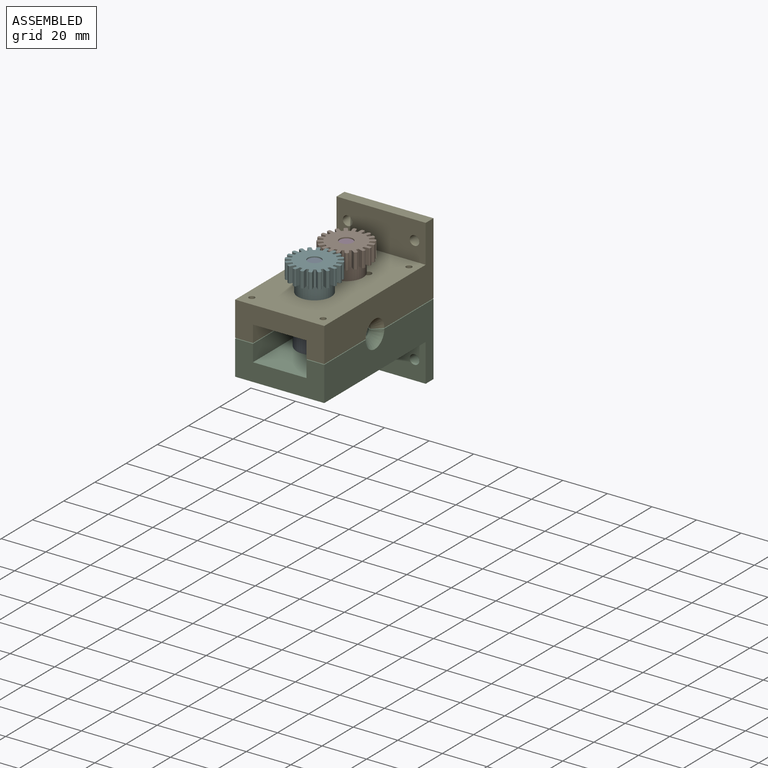
[diagram: assembled view]
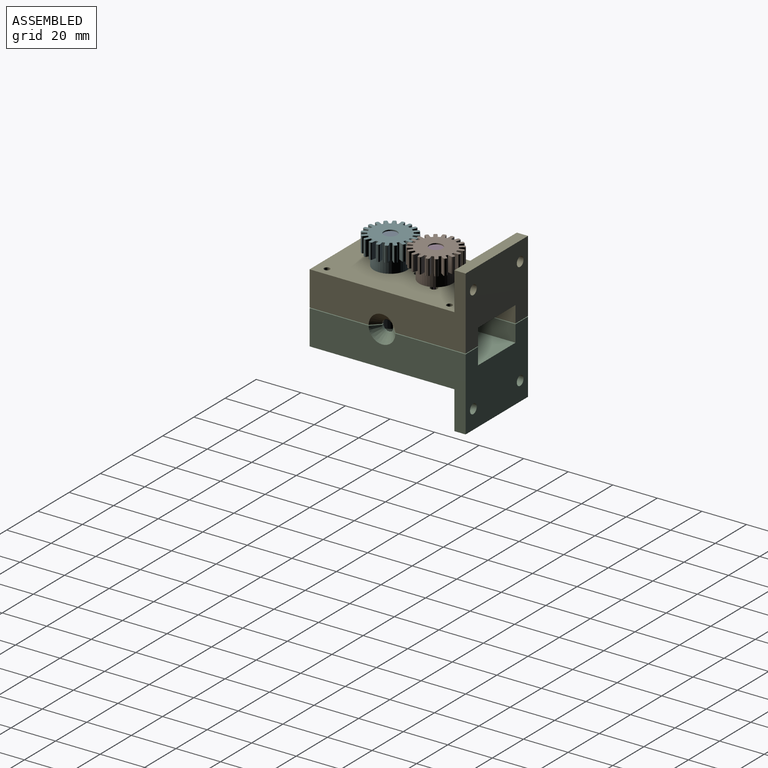
[diagram: assembled view, second angle]
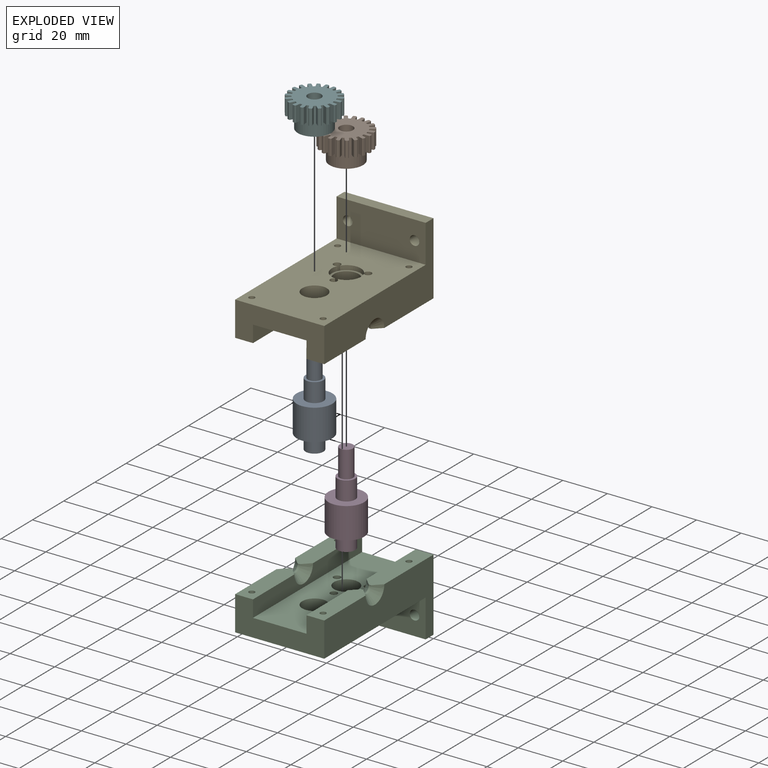
[diagram: exploded view]
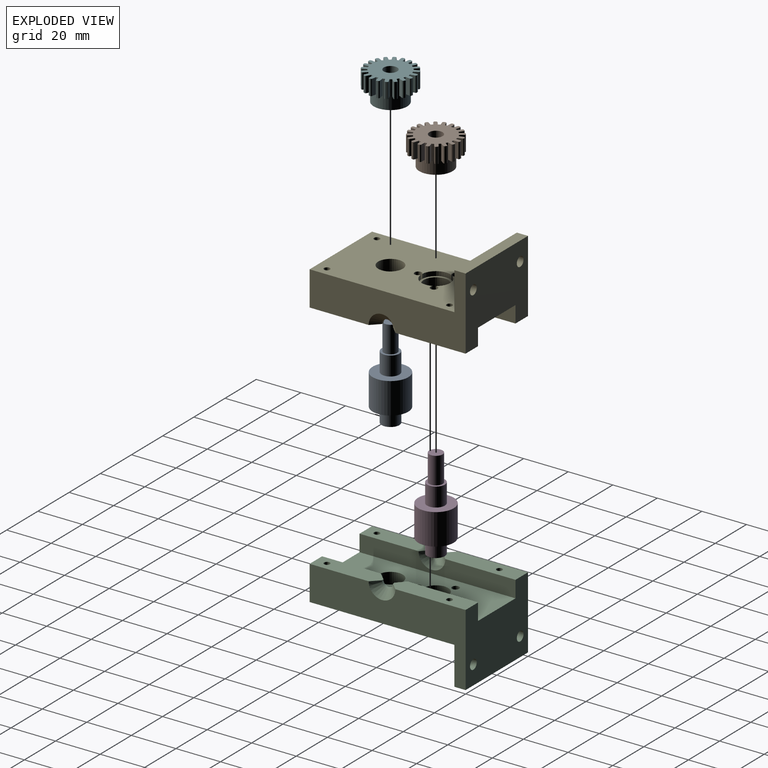
[diagram: exploded view, second angle]
ASSEMBLY  parts=6 mates=8
PART A: 11 faces, bbox 41x16x16 mm
  f0: cylinder r=4mm len=8mm, axis (-1,0,0), area 163.4mm2, adj f1,f8
  f1: plane 16x16mm, normal (-1,0,0), area 150.8mm2, adj f0,f7
  f2: plane 6x6mm, normal (1,0,0), area 28.3mm2, adj f3
  f3: cylinder r=3mm len=12mm, axis (-1,0,0), area 226.2mm2, adj f2,f4
  f4: plane 8x8mm, normal (1,0,0), area 22mm2, adj f3,f5
  f5: cylinder r=4mm len=8.5mm, axis (-1,0,0), area 213.6mm2, adj f4,f6
  f6: plane 16x16mm, normal (1,0,0), area 150.8mm2, adj f5,f7
  f7: cylinder r=8mm len=16mm, axis (-1,0,0), area 703.7mm2, adj f1,f6
  f8: plane 8x8mm, normal (-1,0,0), area 36.4mm2, adj f0,f10
  f9: plane 4.2x4.2mm, normal (-1,0,0), area 13.9mm2, adj f10
  f10: cylinder r=2.1mm len=10mm, axis (-1,0,0), area 131.9mm2, adj f8,f9
PART B: 125 faces, bbox 13x21.9x21.9 mm
  f0: cylinder r=11mm len=7mm, axis (-1,0,0), area 6.5mm2, adj f1,f8,f114,f117
  f1: plane 7x0.43mm, normal (0,-0.32,0.95), area 3.2mm2, adj f0,f3,f114,f117
  f2: plane 7x0.37mm, normal (0,0.81,0.58), area 3.2mm2, adj f5,f114,f117,f118
  f3: plane 7x1.95mm, normal (0,-0.88,0.47), area 15.5mm2, adj f1,f4,f114,f117
  f4: cylinder r=8.5mm len=7mm, axis (-1,0,0), area 7mm2, adj f3,f5,f114,f117
  f5: plane 7x2.19mm, normal (0,0.99,-0.13), area 15.5mm2, adj f2,f4,f114,f117
  f6: cylinder r=11mm len=7mm, axis (-1,0,0), area 6.5mm2, adj f7,f14,f114,f117
  f7: plane 7x0.45mm, normal (0,-0.01,1), area 3.2mm2, adj f6,f9,f114,f117
  f8: plane 7x0.43mm, normal (0,0.95,0.3), area 3.2mm2, adj f0,f11,f114,f117
  f9: plane 7x1.6mm, normal (0,-0.69,0.72), area 15.5mm2, adj f7,f10,f114,f117
  f10: cylinder r=8.5mm len=7mm, axis (-1,0,0), area 7mm2, adj f9,f11,f114,f117
  f11: plane 7x1.99mm, normal (0,0.9,-0.43), area 15.5mm2, adj f8,f10,f114,f117
  f12: cylinder r=11mm len=7mm, axis (-1,0,0), area 6.5mm2, adj f13,f20,f114,f117
  f13: plane 7x0.43mm, normal (0,0.3,0.95), area 3.2mm2, adj f12,f15,f114,f117
  f14: plane 7x0.45mm, normal (0,1,-0.01), area 3.2mm2, adj f6,f17,f114,f117
  f15: plane 7x1.99mm, normal (0,-0.43,0.9), area 15.5mm2, adj f13,f16,f114,f117
  f16: cylinder r=8.5mm len=7mm, axis (-1,0,0), area 7mm2, adj f15,f17,f114,f117
  f17: plane 7x1.6mm, normal (0,0.72,-0.69), area 15.5mm2, adj f14,f16,f114,f117
  f18: cylinder r=11mm len=7mm, axis (-1,0,0), area 6.5mm2, adj f19,f26,f114,f117
  f19: plane 7x0.37mm, normal (0,0.58,0.81), area 3.2mm2, adj f18,f21,f114,f117
  f20: plane 7x0.43mm, normal (0,0.95,-0.32), area 3.2mm2, adj f12,f23,f114,f117
  f21: plane 7x2.19mm, normal (0,-0.13,0.99), area 15.5mm2, adj f19,f22,f114,f117
  f22: cylinder r=8.5mm len=7mm, axis (-1,0,0), area 7mm2, adj f21,f23,f114,f117
  f23: plane 7x1.95mm, normal (0,0.47,-0.88), area 15.5mm2, adj f20,f22,f114,f117
  f24: cylinder r=11mm len=7mm, axis (-1,0,0), area 6.5mm2, adj f25,f32,f114,f117
  f25: plane 7x0.36mm, normal (0,0.8,0.6), area 3.2mm2, adj f24,f27,f114,f117
  f26: plane 7x0.36mm, normal (0,0.8,-0.6), area 3.2mm2, adj f18,f29,f114,f117
  f27: plane 7x2.17mm, normal (0,0.18,0.98), area 15.5mm2, adj f25,f28,f114,f117
  f28: cylinder r=8.5mm len=7mm, axis (-1,0,0), area 7mm2, adj f27,f29,f114,f117
  f29: plane 7x2.17mm, normal (0,0.18,-0.98), area 15.5mm2, adj f26,f28,f114,f117
  f30: cylinder r=11mm len=7mm, axis (-1,0,0), area 6.5mm2, adj f31,f38,f114,f117
  f31: plane 7x0.43mm, normal (0,0.95,0.32), area 3.2mm2, adj f30,f33,f114,f117
  f32: plane 7x0.37mm, normal (0,0.58,-0.81), area 3.2mm2, adj f24,f35,f114,f117
  f33: plane 7x1.95mm, normal (0,0.47,0.88), area 15.5mm2, adj f31,f34,f114,f117
  f34: cylinder r=8.5mm len=7mm, axis (-1,0,0), area 7mm2, adj f33,f35,f114,f117
  f35: plane 7x2.19mm, normal (0,-0.13,-0.99), area 15.5mm2, adj f32,f34,f114,f117
  f36: cylinder r=11mm len=7mm, axis (-1,0,0), area 6.5mm2, adj f37,f44,f114,f117
  f37: plane 7x0.45mm, normal (0,1,0.01), area 3.2mm2, adj f36,f39,f114,f117
  f38: plane 7x0.43mm, normal (0,0.3,-0.95), area 3.2mm2, adj f30,f41,f114,f117
  f39: plane 7x1.6mm, normal (0,0.72,0.69), area 15.5mm2, adj f37,f40,f114,f117
  f40: cylinder r=8.5mm len=7mm, axis (-1,0,0), area 7mm2, adj f39,f41,f114,f117
  f41: plane 7x1.99mm, normal (0,-0.43,-0.9), area 15.5mm2, adj f38,f40,f114,f117
  f42: cylinder r=11mm len=7mm, axis (-1,0,0), area 6.5mm2, adj f43,f50,f114,f117
  f43: plane 7x0.43mm, normal (0,0.95,-0.3), area 3.2mm2, adj f42,f45,f114,f117
  f44: plane 7x0.45mm, normal (0,-0.01,-1), area 3.2mm2, adj f36,f47,f114,f117
  f45: plane 7x1.99mm, normal (0,0.9,0.43), area 15.5mm2, adj f43,f46,f114,f117
  f46: cylinder r=8.5mm len=7mm, axis (-1,0,0), area 7mm2, adj f45,f47,f114,f117
  f47: plane 7x1.6mm, normal (0,-0.69,-0.72), area 15.5mm2, adj f44,f46,f114,f117
  f48: cylinder r=11mm len=7mm, axis (-1,0,0), area 6.5mm2, adj f49,f56,f114,f117
  f49: plane 7x0.37mm, normal (0,0.81,-0.58), area 3.2mm2, adj f48,f51,f114,f117
  f50: plane 7x0.43mm, normal (0,-0.32,-0.95), area 3.2mm2, adj f42,f53,f114,f117
  f51: plane 7x2.19mm, normal (0,0.99,0.13), area 15.5mm2, adj f49,f52,f114,f117
  f52: cylinder r=8.5mm len=7mm, axis (-1,0,0), area 7mm2, adj f51,f53,f114,f117
  f53: plane 7x1.95mm, normal (0,-0.88,-0.47), area 15.5mm2, adj f50,f52,f114,f117
  f54: cylinder r=11mm len=7mm, axis (-1,0,0), area 6.5mm2, adj f55,f62,f114,f117
  f55: plane 7x0.36mm, normal (0,0.6,-0.8), area 3.2mm2, adj f54,f57,f114,f117
  f56: plane 7x0.36mm, normal (0,-0.6,-0.8), area 3.2mm2, adj f48,f59,f114,f117
  f57: plane 7x2.17mm, normal (0,0.98,-0.18), area 15.5mm2, adj f55,f58,f114,f117
  f58: cylinder r=8.5mm len=7mm, axis (-1,0,0), area 7mm2, adj f57,f59,f114,f117
  f59: plane 7x2.17mm, normal (0,-0.98,-0.18), area 15.5mm2, adj f56,f58,f114,f117
  f60: cylinder r=11mm len=7mm, axis (-1,0,0), area 6.5mm2, adj f61,f68,f114,f117
  f61: plane 7x0.43mm, normal (0,0.32,-0.95), area 3.2mm2, adj f60,f63,f114,f117
  f62: plane 7x0.37mm, normal (0,-0.81,-0.58), area 3.2mm2, adj f54,f65,f114,f117
  f63: plane 7x1.95mm, normal (0,0.88,-0.47), area 15.5mm2, adj f61,f64,f114,f117
  f64: cylinder r=8.5mm len=7mm, axis (-1,0,0), area 7mm2, adj f63,f65,f114,f117
  f65: plane 7x2.19mm, normal (0,-0.99,0.13), area 15.5mm2, adj f62,f64,f114,f117
  f66: cylinder r=11mm len=7mm, axis (-1,0,0), area 6.5mm2, adj f67,f74,f114,f117
  f67: plane 7x0.45mm, normal (0,0.01,-1), area 3.2mm2, adj f66,f69,f114,f117
  f68: plane 7x0.43mm, normal (0,-0.95,-0.3), area 3.2mm2, adj f60,f71,f114,f117
  f69: plane 7x1.6mm, normal (0,0.69,-0.72), area 15.5mm2, adj f67,f70,f114,f117
  f70: cylinder r=8.5mm len=7mm, axis (-1,0,0), area 7mm2, adj f69,f71,f114,f117
  f71: plane 7x1.99mm, normal (0,-0.9,0.43), area 15.5mm2, adj f68,f70,f114,f117
  f72: cylinder r=11mm len=7mm, axis (-1,0,0), area 6.5mm2, adj f73,f80,f114,f117
  f73: plane 7x0.43mm, normal (0,-0.3,-0.95), area 3.2mm2, adj f72,f75,f114,f117
  f74: plane 7x0.45mm, normal (0,-1,0.01), area 3.2mm2, adj f66,f77,f114,f117
  f75: plane 7x1.99mm, normal (0,0.43,-0.9), area 15.5mm2, adj f73,f76,f114,f117
  f76: cylinder r=8.5mm len=7mm, axis (-1,0,0), area 7mm2, adj f75,f77,f114,f117
  f77: plane 7x1.6mm, normal (0,-0.72,0.69), area 15.5mm2, adj f74,f76,f114,f117
  f78: cylinder r=11mm len=7mm, axis (-1,0,0), area 6.5mm2, adj f79,f86,f114,f117
  f79: plane 7x0.37mm, normal (0,-0.58,-0.81), area 3.2mm2, adj f78,f81,f114,f117
  f80: plane 7x0.43mm, normal (0,-0.95,0.32), area 3.2mm2, adj f72,f83,f114,f117
  f81: plane 7x2.19mm, normal (0,0.13,-0.99), area 15.5mm2, adj f79,f82,f114,f117
  f82: cylinder r=8.5mm len=7mm, axis (-1,0,0), area 7mm2, adj f81,f83,f114,f117
  f83: plane 7x1.95mm, normal (0,-0.47,0.88), area 15.5mm2, adj f80,f82,f114,f117
  f84: cylinder r=11mm len=7mm, axis (-1,0,0), area 6.5mm2, adj f85,f92,f114,f117
  f85: plane 7x0.36mm, normal (0,-0.8,-0.6), area 3.2mm2, adj f84,f87,f114,f117
  f86: plane 7x0.36mm, normal (0,-0.8,0.6), area 3.2mm2, adj f78,f89,f114,f117
  f87: plane 7x2.17mm, normal (0,-0.18,-0.98), area 15.5mm2, adj f85,f88,f114,f117
  f88: cylinder r=8.5mm len=7mm, axis (-1,0,0), area 7mm2, adj f87,f89,f114,f117
  f89: plane 7x2.17mm, normal (0,-0.18,0.98), area 15.5mm2, adj f86,f88,f114,f117
  f90: cylinder r=11mm len=7mm, axis (-1,0,0), area 6.5mm2, adj f91,f98,f114,f117
  f91: plane 7x0.43mm, normal (0,-0.95,-0.32), area 3.2mm2, adj f90,f93,f114,f117
  f92: plane 7x0.37mm, normal (0,-0.58,0.81), area 3.2mm2, adj f84,f95,f114,f117
  f93: plane 7x1.95mm, normal (0,-0.47,-0.88), area 15.5mm2, adj f91,f94,f114,f117
  f94: cylinder r=8.5mm len=7mm, axis (-1,0,0), area 7mm2, adj f93,f95,f114,f117
  f95: plane 7x2.19mm, normal (0,0.13,0.99), area 15.5mm2, adj f92,f94,f114,f117
  f96: cylinder r=11mm len=7mm, axis (-1,0,0), area 6.5mm2, adj f97,f104,f114,f117
  f97: plane 7x0.45mm, normal (0,-1,-0.01), area 3.2mm2, adj f96,f99,f114,f117
  f98: plane 7x0.43mm, normal (0,-0.3,0.95), area 3.2mm2, adj f90,f101,f114,f117
  f99: plane 7x1.6mm, normal (0,-0.72,-0.69), area 15.5mm2, adj f97,f100,f114,f117
  f100: cylinder r=8.5mm len=7mm, axis (-1,0,0), area 7mm2, adj f99,f101,f114,f117
  f101: plane 7x1.99mm, normal (0,0.43,0.9), area 15.5mm2, adj f98,f100,f114,f117
  f102: cylinder r=11mm len=7mm, axis (-1,0,0), area 6.5mm2, adj f103,f110,f114,f117
  f103: plane 7x0.43mm, normal (0,-0.95,0.3), area 3.2mm2, adj f102,f105,f114,f117
  f104: plane 7x0.45mm, normal (0,0.01,1), area 3.2mm2, adj f96,f107,f114,f117
  f105: plane 7x1.99mm, normal (0,-0.9,-0.43), area 15.5mm2, adj f103,f106,f114,f117
  f106: cylinder r=8.5mm len=7mm, axis (-1,0,0), area 7mm2, adj f105,f107,f114,f117
  f107: plane 7x1.6mm, normal (0,0.69,0.72), area 15.5mm2, adj f104,f106,f114,f117
  f108: cylinder r=11mm len=7mm, axis (-1,0,0), area 6.5mm2, adj f109,f114,f117,f123
  f109: plane 7x0.37mm, normal (0,-0.81,0.58), area 3.2mm2, adj f108,f111,f114,f117
  f110: plane 7x0.43mm, normal (0,0.32,0.95), area 3.2mm2, adj f102,f113,f114,f117
  f111: plane 7x2.19mm, normal (0,-0.99,-0.13), area 15.5mm2, adj f109,f112,f114,f117
  f112: cylinder r=8.5mm len=7mm, axis (-1,0,0), area 7mm2, adj f111,f113,f114,f117
  f113: plane 7x1.95mm, normal (0,0.88,0.47), area 15.5mm2, adj f110,f112,f114,f117
  f114: plane 21.86x21.86mm, normal (-1,0,0), area 277.4mm2, adj f0,f1,f2,f3,f4,f5,f6,f7
  f115: plane 15x15mm, normal (1,0,0), area 148.4mm2, adj f116,f119
  f116: cylinder r=7.5mm len=15mm, axis (-1,0,0), area 282.7mm2, adj f115,f117
  f117: plane 21.86x21.86mm, normal (1,0,0), area 129mm2, adj f0,f1,f2,f3,f4,f5,f6,f7
  f118: cylinder r=11mm len=7mm, axis (-1,0,0), area 6.5mm2, adj f2,f114,f117,f124
  f119: cylinder r=3mm len=13mm, axis (-1,0,0), area 245mm2, adj f114,f115
  f120: plane 7x2.17mm, normal (0,-0.98,0.18), area 15.5mm2, adj f114,f117,f122,f124
  f121: plane 7x2.17mm, normal (0,0.98,0.18), area 15.5mm2, adj f114,f117,f122,f123
  f122: cylinder r=8.5mm len=7mm, axis (-1,0,0), area 7mm2, adj f114,f117,f120,f121
  f123: plane 7x0.36mm, normal (0,0.6,0.8), area 3.2mm2, adj f108,f114,f117,f121
  f124: plane 7x0.36mm, normal (0,-0.6,0.8), area 3.2mm2, adj f114,f117,f118,f120
PART C: 35 faces, bbox 40x32.5x70 mm
  f0: plane 40x32.5mm, normal (0,0,-1), area 1091mm2, adj f4,f5,f8,f10,f11,f19,f20,f21
  f1: plane 40x17mm, normal (0,0,1), area 651mm2, adj f2,f8,f10,f11,f29,f30
  f2: plane 65x40mm, normal (0,-1,0), area 2327.1mm2, adj f1,f7,f8,f9,f10,f12,f13,f14
  f3: plane 30x8mm, normal (0,1,0), area 222.4mm2, adj f7,f8,f20,f24,f28,f32,f33
  f4: plane 35x8mm, normal (0,1,0), area 262.4mm2, adj f0,f10,f21,f23,f27,f31,f34
  f5: plane 70x24mm, normal (0,1,0), area 1465.8mm2, adj f0,f6,f7,f9,f12,f13,f14,f20
  f6: cylinder r=5.5mm len=11mm, axis (0,1,0), area 207.3mm2, adj f5,f18
  f7: plane 40x15.5mm, normal (0,0,1), area 440mm2, adj f2,f3,f5,f8,f10,f20,f21,f22
  f8: plane 70x32.5mm, normal (-1,0,0), area 1113.5mm2, adj f0,f1,f2,f3,f7,f11,f19,f33
  f9: cylinder r=5.5mm len=11mm, axis (0,1,0), area 276.5mm2, adj f2,f5
  f10: plane 70x32.5mm, normal (1,0,0), area 1113.5mm2, adj f0,f1,f2,f4,f7,f11,f22,f34
  f11: plane 40x5mm, normal (0,-1,0), area 200mm2, adj f0,f1,f8,f10
  f12: cylinder r=1.6mm len=8mm, axis (0,1,0), area 78.4mm2, adj f2,f5,f15,f16,f18
  f13: cylinder r=1.6mm len=8mm, axis (0,1,0), area 78.4mm2, adj f2,f5,f16,f17,f18
  f14: cylinder r=1.6mm len=8mm, axis (0,1,0), area 78.4mm2, adj f2,f5,f15,f17,f18
  f15: cylinder r=6.5mm len=9.29mm, axis (0,-1,0), area 25.2mm2, adj f2,f12,f14,f18
  f16: cylinder r=6.5mm len=10.72mm, axis (0,-1,0), area 25.2mm2, adj f2,f12,f13,f18
  f17: cylinder r=6.5mm len=9.29mm, axis (0,-1,0), area 25.2mm2, adj f2,f13,f14,f18
  f18: plane 13x12.98mm, normal (0,-1,0), area 37.5mm2, adj f6,f12,f13,f14,f15,f16,f17
  f19: plane 35x8mm, normal (0,1,0), area 262.4mm2, adj f0,f8,f20,f24,f26,f32,f33
  f20: plane 70x7.5mm, normal (1,0,0), area 468.5mm2, adj f0,f3,f5,f7,f19,f32
  f21: plane 70x7.5mm, normal (-1,0,0), area 468.5mm2, adj f0,f4,f5,f7,f22,f31
  f22: plane 30x8mm, normal (0,1,0), area 222.4mm2, adj f7,f10,f21,f23,f25,f31,f34
  f23: cylinder r=2.5mm len=5mm, axis (1,0,0), area 7.9mm2, adj f4,f22,f31,f34
  f24: cylinder r=2.5mm len=5mm, axis (1,0,0), area 7.9mm2, adj f3,f19,f32,f33
  f25: cylinder r=1.3mm len=15.5mm, axis (0,-1,0), area 126.6mm2, adj f2,f22
  f26: cylinder r=1.3mm len=15.5mm, axis (0,-1,0), area 126.6mm2, adj f2,f19
  f27: cylinder r=1.3mm len=15.5mm, axis (0,-1,0), area 126.6mm2, adj f2,f4
  f28: cylinder r=1.3mm len=15.5mm, axis (0,-1,0), area 126.6mm2, adj f2,f3
  f29: cylinder r=2.15mm len=5mm, axis (0,0,1), area 67.5mm2, adj f0,f1
  f30: cylinder r=2.15mm len=5mm, axis (0,0,1), area 67.5mm2, adj f0,f1
  f31: cone r=2.5mm half-angle=45deg, axis (-1,0,0), area 66.1mm2, adj f4,f21,f22,f23
  f32: cone r=6mm half-angle=45deg, axis (1,0,0), area 66.1mm2, adj f3,f19,f20,f24
  f33: cone r=6mm half-angle=45deg, axis (-1,0,0), area 66.1mm2, adj f3,f8,f19,f24
  f34: cone r=2.5mm half-angle=45deg, axis (1,0,0), area 66.1mm2, adj f4,f10,f22,f23
PART D: same geometry as A
PART E: same geometry as C
PART F: same geometry as B
PLACE A rot(axis=(0.29,-0.91,0.29),95.3deg) t=(0,-47.7,-17.61)mm
PLACE B rot(axis=(-0.08,0.99,0.08),90.4deg) t=(0,-27.3,-2.61)mm
PLACE C rot(axis=(1,0,0),90deg) t=(0,-37.5,-25.88)mm
PLACE D rot(axis=(-0.58,-0.58,-0.58),120deg) t=(0,-27.3,-17.61)mm
PLACE E rot(axis=(0,-0.71,0.71),180deg) t=(0,-37.5,-10.61)mm
PLACE F rot(axis=(0.58,0.58,-0.58),120deg) t=(0,-47.7,-2.61)mm
MATE cylindrical B.f0 <-> D.f0  axis (0,0,1) through (0,-27.3,3.89)mm
MATE planar D.f10 <-> E.f5  axis (0,0,1) through (0,-27.3,-10.61)mm
MATE cylindrical A.f0 <-> E.f9  axis (0,0,-1) through (0,-47.7,-10.61)mm
MATE planar F.f0 <-> E.f2  axis (0,0,-1) through (0,-47.7,-2.61)mm
MATE cylindrical F.f0 <-> A.f0  axis (0,0,-1) through (0,-47.7,-2.61)mm
MATE cylindrical D.f0 <-> E.f6  axis (0,0,-1) through (0,-27.3,-10.61)mm
MATE planar B.f0 <-> E.f2  axis (0,0,-1) through (0,-27.3,-2.61)mm
MATE planar A.f0 <-> E.f5  axis (0,0,1) through (0,-47.7,-10.61)mm
